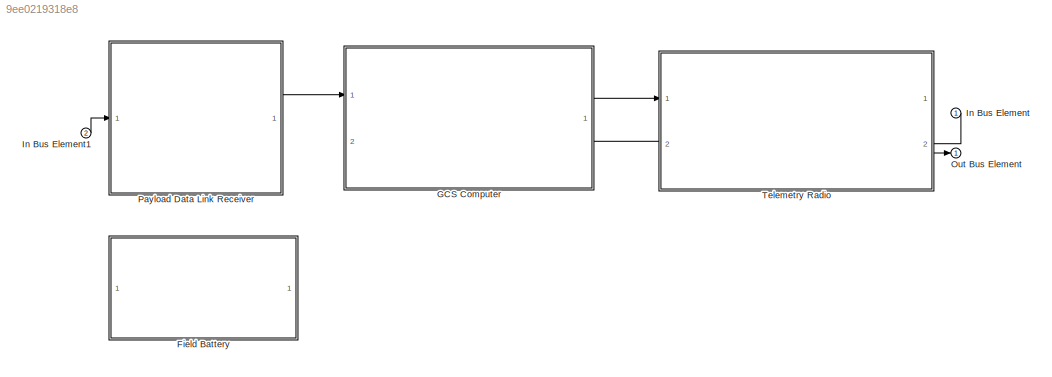
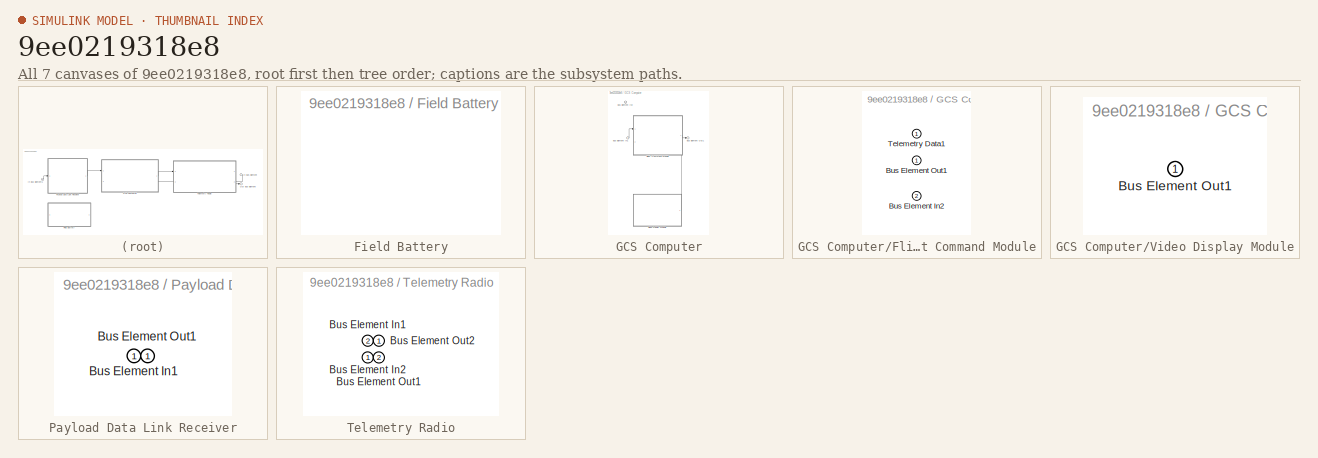
[diagram: thumbnail index - all 7 canvases of the model, root first then tree order]
MODEL slx_9ee0219318e8
KIND model
CONFIG AbsTol = auto
CONFIG EnableMultiTasking = off
CONFIG FixedStep = auto
CONFIG MaxStep = auto
CONFIG MinStep = auto
CONFIG RelTol = 1e-3
CONFIG SampleTimeConstraint = Unconstrained
CONFIG Solver = VariableStepAuto
CONFIG SolverName = VariableStepAuto
CONFIG StartTime = 0.0
CONFIG StopTime = 10.0
BLOCK [SubSystem] Field Battery
  PortSchema = {"entries":[{"content":{"headerSize":26,"margin":15,"minimumSpacing":25,"sides":[{"content":{"connectorIds":[]},"type":"ConnectorPlacement.EquallySpacedRectSide","uuid":"d39ea880-6caf-4145-b7f0-b92ac95b231c"},{"content":{"connectorIds":[],"side":"RIGHT"},"type":"ConnectorPlacement.EquallySpacedRectSide","uuid":"9a787458-5dfd-4b88-89fa-fa737c2416b2"},{"content":{"connectorIds":[],"side":"TOP"},"typ...<+284ch>
  Ports = []
  RequestExecContextInheritance = off
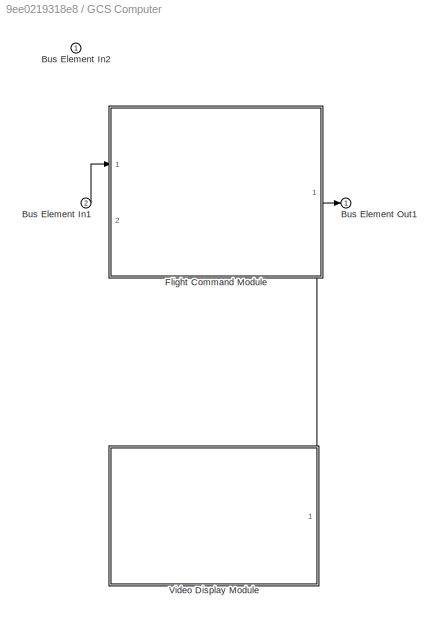
BLOCK [SubSystem] GCS Computer
  PortSchema = {"entries":[{"content":{"headerSize":26,"margin":15,"minimumSpacing":25,"sides":[{"content":{"connectorIds":["In1"]},"type":"ConnectorPlacement.EquallySpacedRectSide","uuid":"d39ea880-6caf-4145-b7f0-b92ac95b231c"},{"content":{"connectorIds":["In2","Out1"],"side":"RIGHT"},"type":"ConnectorPlacement.EquallySpacedRectSide","uuid":"9a787458-5dfd-4b88-89fa-fa737c2416b2"},{"content":{"connectorIds":[],"...<+301ch>
  Ports = [2, 1]
  RequestExecContextInheritance = off
BLOCK [Inport] GCS Computer/Bus Element In1
  IconDisplay = Port number
  Port = 2
BLOCK [Inport] GCS Computer/Bus Element In2
  IconDisplay = Port number
BLOCK [Outport] GCS Computer/Bus Element Out1
  IconDisplay = Port number
BLOCK [SubSystem] GCS Computer/Flight Command Module
  PortSchema = {"entries":[{"content":{"headerSize":26,"margin":15,"minimumSpacing":25,"sides":[{"content":{"connectorIds":["In1"]},"type":"ConnectorPlacement.EquallySpacedRectSide","uuid":"d39ea880-6caf-4145-b7f0-b92ac95b231c"},{"content":{"connectorIds":["Out1"],"side":"RIGHT"},"type":"ConnectorPlacement.EquallySpacedRectSide","uuid":"9a787458-5dfd-4b88-89fa-fa737c2416b2"},{"content":{"connectorIds":[],"side":...<+444ch>
  Ports = [2, 1]
  RequestExecContextInheritance = off
BLOCK [Inport] GCS Computer/Flight Command Module/Bus Element In2
  IconDisplay = Port number
  Port = 2
BLOCK [Outport] GCS Computer/Flight Command Module/Bus Element Out1
  IconDisplay = Port number
BLOCK [Inport] GCS Computer/Flight Command Module/Telemetry Data1
  IconDisplay = Port number
BLOCK [SubSystem] GCS Computer/Video Display Module
  PortSchema = {"entries":[{"content":{"headerSize":26,"margin":15,"minimumSpacing":25,"sides":[{"content":{"connectorIds":[]},"type":"ConnectorPlacement.EquallySpacedRectSide","uuid":"d39ea880-6caf-4145-b7f0-b92ac95b231c"},{"content":{"connectorIds":[],"side":"RIGHT"},"type":"ConnectorPlacement.EquallySpacedRectSide","uuid":"9a787458-5dfd-4b88-89fa-fa737c2416b2"},{"content":{"connectorIds":["Out1"],"side":"TOP"...<+290ch>
  Ports = [0, 1]
  RequestExecContextInheritance = off
BLOCK [Outport] GCS Computer/Video Display Module/Bus Element Out1
  IconDisplay = Port number
BLOCK [Inport] In Bus Element
  IconDisplay = Port number
BLOCK [Inport] In Bus Element1
  IconDisplay = Port number
  Port = 2
BLOCK [Outport] Out Bus Element
  IconDisplay = Port number
BLOCK [SubSystem] Payload Data Link Receiver
  PortSchema = {"entries":[{"content":{"headerSize":26,"margin":15,"minimumSpacing":25,"sides":[{"content":{"connectorIds":["In1"]},"type":"ConnectorPlacement.EquallySpacedRectSide","uuid":"d39ea880-6caf-4145-b7f0-b92ac95b231c"},{"content":{"connectorIds":["Out1"],"side":"RIGHT"},"type":"ConnectorPlacement.EquallySpacedRectSide","uuid":"9a787458-5dfd-4b88-89fa-fa737c2416b2"},{"content":{"connectorIds":[],"side":...<+295ch>
  Ports = [1, 1]
  RequestExecContextInheritance = off
BLOCK [Inport] Payload Data Link Receiver/Bus Element In1
  IconDisplay = Port number
BLOCK [Outport] Payload Data Link Receiver/Bus Element Out1
  IconDisplay = Port number
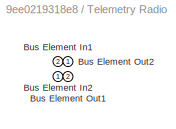
BLOCK [SubSystem] Telemetry Radio
  PortSchema = {"entries":[{"content":{"headerSize":26,"margin":15,"minimumSpacing":25,"sides":[{"content":{"connectorIds":["Out1","In1"]},"type":"ConnectorPlacement.EquallySpacedRectSide","uuid":"d39ea880-6caf-4145-b7f0-b92ac95b231c"},{"content":{"connectorIds":["In2","Out2"],"side":"RIGHT"},"type":"ConnectorPlacement.EquallySpacedRectSide","uuid":"9a787458-5dfd-4b88-89fa-fa737c2416b2"},{"content":{"connectorId...<+308ch>
  Ports = [2, 2]
  RequestExecContextInheritance = off
BLOCK [Inport] Telemetry Radio/Bus Element In1
  IconDisplay = Port number
  Port = 2
BLOCK [Inport] Telemetry Radio/Bus Element In2
  IconDisplay = Port number
BLOCK [Outport] Telemetry Radio/Bus Element Out1
  IconDisplay = Port number
  Port = 2
BLOCK [Outport] Telemetry Radio/Bus Element Out2
  IconDisplay = Port number
LINE GCS Computer/Bus Element In1:1 -> GCS Computer/Flight Command Module:1
LINE GCS Computer/Flight Command Module:1 -> GCS Computer/Bus Element Out1:1
LINE GCS Computer/Video Display Module:1 -> GCS Computer/Flight Command Module:2
LINE GCS Computer:1 -> Telemetry Radio:1
LINE In Bus Element1:1 -> Payload Data Link Receiver:1
LINE In Bus Element:1 -> Telemetry Radio:2
LINE Payload Data Link Receiver/Bus Element In1:1 -> Payload Data Link Receiver/Bus Element Out1:1
LINE Payload Data Link Receiver:1 -> GCS Computer:1
LINE Telemetry Radio/Bus Element In1:1 -> Telemetry Radio/Bus Element Out2:1
LINE Telemetry Radio/Bus Element In2:1 -> Telemetry Radio/Bus Element Out1:1
LINE Telemetry Radio:1 -> GCS Computer:2
LINE Telemetry Radio:2 -> Out Bus Element:1
